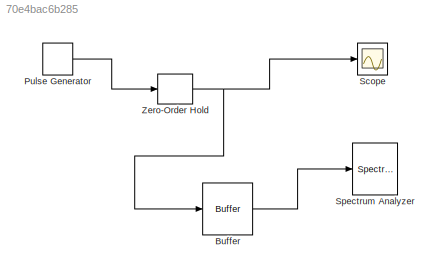
MODEL slx_70e4bac6b285
KIND model
BLOCK [Buffer] Buffer
  N = 1024
  TreatMby1Signals = One channel
BLOCK [DiscretePulseGenerator] Pulse Generator
  Ports = [0, 1]
BLOCK [Scope] Scope
  DataFormat = StructureWithTime
  Floating = off
  NumInputPorts = 1
  Ports = [1]
  SampleTime = 0
  ShowLegends = off
BLOCK [SpectrumAnalyzer] Spectrum Analyzer
  CloseFcn = scopeextensions.ScopeBlock.callback(gcbh, 'onBlockClose');
  CopyFcn = scopeextensions.ScopeBlock.callback(gcbh, 'onBlockCopy', gcbh);
  DeleteFcn = scopeextensions.ScopeBlock.callback(gcbh, 'onBlockDelete');
  NameChangeFcn = scopeextensions.ScopeBlock.callback(gcbh, 'onBlockRename');
  Ports = [1]
  PreDeleteFcn = scopeextensions.ScopeBlock.callback(gcbh, 'onBlockPreDelete');
  PreSaveFcn = scopeextensions.ScopeBlock.callback(gcbh, 'onModelSave');
  UserDataPersistent = on
BLOCK [ZeroOrderHold] Zero-Order Hold
LINE Buffer:1 -> Spectrum Analyzer:1
LINE Pulse Generator:1 -> Zero-Order Hold:1
NET Zero-Order Hold:1 -> Buffer:1, Scope:1
note: NET lines group one-source signal fan-out (src -> all destinations, sorted); 1:1 wires keep LINE
